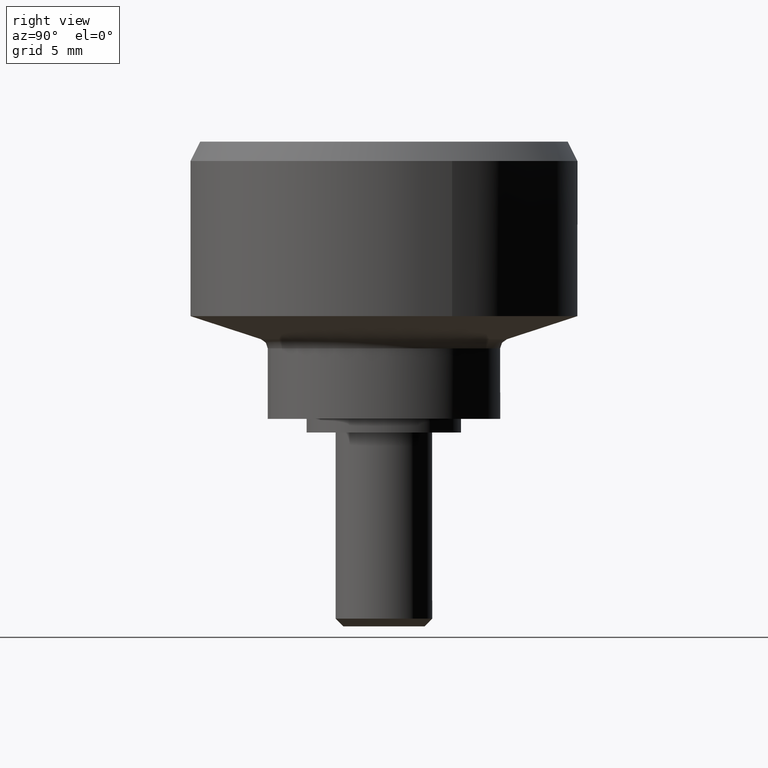
[diagram: clean part render]
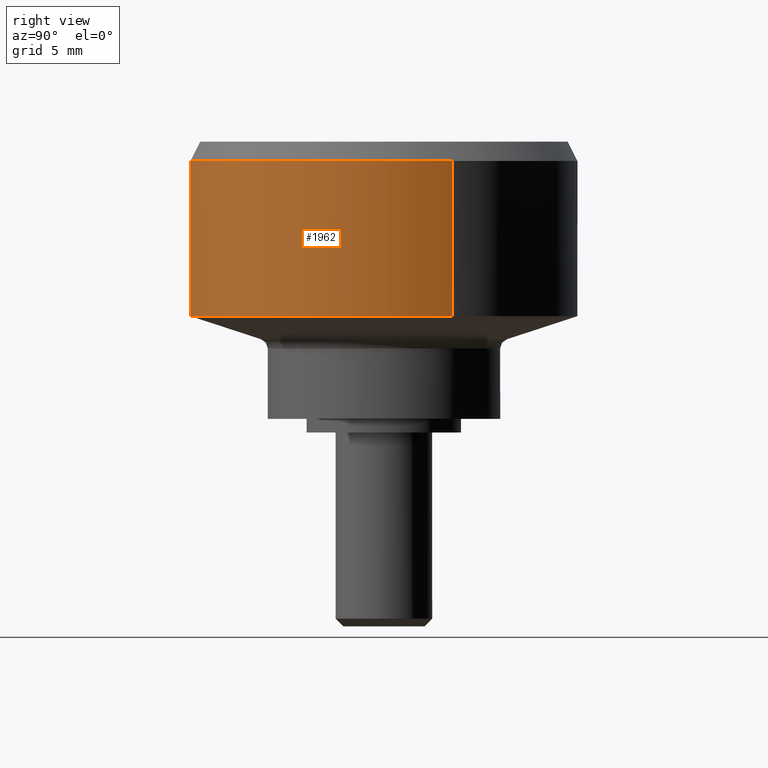
[diagram: same view with one face highlighted and labeled with its STEP entity id]
A machine part, right view. The second image highlights one B-rep face of the part: STEP entity #1962.
In plain terms, the highlighted face is a freeform B-spline surface patch.
Its self-contained STEP definition (entity closure, byte-faithful):
#1759=CARTESIAN_POINT('',(2.503800040552528,-9.681476403780005,6.000000000000323));
#1760=VERTEX_POINT('',#1759);
#1766=CARTESIAN_POINT('',(0.610483566912849,-9.981348096050251,6.0));
#1767=VERTEX_POINT('',#1766);
#1768=CARTESIAN_POINT('',(2.503800040552528,-9.681476403780005,6.000000000000324));
#1769=CARTESIAN_POINT('',(1.571578997512162,-9.922565158017424,6.000000000000001));
#1770=CARTESIAN_POINT('',(0.610483566912849,-9.981348096050251,6.0));
#1778=(BOUNDED_CURVE()B_SPLINE_CURVE(2,(#1768,#1769,#1770),.UNSPECIFIED.,.F.,.U.)B_SPLINE_CURVE_WITH_KNOTS((3,3),(0.707273770289315,0.739332993849996),.UNSPECIFIED.)CURVE()GEOMETRIC_REPRESENTATION_ITEM()RATIONAL_B_SPLINE_CURVE((0.916996154476284,0.941717590524257,0.976072109415231))REPRESENTATION_ITEM(''));
#1779=EDGE_CURVE('',#1760,#1767,#1778,.T.);
#1817=CARTESIAN_POINT('',(9.361436365633708,3.516178205408258,6.0));
#1818=VERTEX_POINT('',#1817);
#1834=CARTESIAN_POINT('',(10.0,0.0,6.0));
#1835=VERTEX_POINT('',#1834);
#1836=CARTESIAN_POINT('',(9.361436365633708,3.516178205408257,5.999999999999999));
#1837=CARTESIAN_POINT('',(10.0,1.816073011839893,6.0));
#1838=CARTESIAN_POINT('',(10.0,0.0,6.0));
#1846=(BOUNDED_CURVE()B_SPLINE_CURVE(2,(#1836,#1837,#1838),.UNSPECIFIED.,.F.,.U.)B_SPLINE_CURVE_WITH_KNOTS((3,3),(0.440284196857223,0.500000000000000),.UNSPECIFIED.)CURVE()GEOMETRIC_REPRESENTATION_ITEM()RATIONAL_B_SPLINE_CURVE((0.893499586402586,0.930038584813926,1.0))REPRESENTATION_ITEM(''));
#1847=EDGE_CURVE('',#1818,#1835,#1846,.T.);
#1849=CARTESIAN_POINT('',(10.0,0.0,6.0));
#1850=CARTESIAN_POINT('',(10.0,-7.742827278405003,6.000000000000001));
#1851=CARTESIAN_POINT('',(2.503800040552529,-9.681476403780005,6.000000000000323));
#1859=(BOUNDED_CURVE()B_SPLINE_CURVE(2,(#1849,#1850,#1851),.UNSPECIFIED.,.F.,.U.)B_SPLINE_CURVE_WITH_KNOTS((3,3),(0.500000000000000,0.707273770289316),.UNSPECIFIED.)CURVE()GEOMETRIC_REPRESENTATION_ITEM()RATIONAL_B_SPLINE_CURVE((1.0,0.757163672977449,0.916996154476285))REPRESENTATION_ITEM(''));
#1860=EDGE_CURVE('',#1835,#1760,#1859,.T.);
#1897=CARTESIAN_POINT('',(9.361435787766570,3.516179743915722,14.200000000000010));
#1898=CARTESIAN_POINT('',(9.889640193651504,2.109894517154083,14.200000000000006));
#1899=CARTESIAN_POINT('',(9.981347984218667,0.610485395348570,14.199999999999999));
#1900=CARTESIAN_POINT('',(10.591833379567237,-9.370862588870097,14.200000000000006));
#1901=CARTESIAN_POINT('',(0.610485395348570,-9.981347984218667,14.199999999999999));
#1902=CARTESIAN_POINT('',(9.361435787766570,3.516179743915722,5.795000000000001));
#1903=CARTESIAN_POINT('',(9.889640193651504,2.109894517154083,5.795000000000000));
#1904=CARTESIAN_POINT('',(9.981347984218667,0.610485395348570,5.795000000000000));
#1905=CARTESIAN_POINT('',(10.591833379567237,-9.370862588870097,5.795000000000000));
#1906=CARTESIAN_POINT('',(0.610485395348570,-9.981347984218667,5.795000000000000));
#1914=(BOUNDED_SURFACE()B_SPLINE_SURFACE(2,1,((#1897,#1902),(#1898,#1903),(#1899,#1904),(#1900,#1905),(#1901,#1906)),.UNSPECIFIED.,.F.,.F.,.U.)B_SPLINE_SURFACE_WITH_KNOTS((3,2,3),(2,2),(0.0,3.313708498984759,19.882250993908560),(0.0,8.405000000000005),.UNSPECIFIED.)GEOMETRIC_REPRESENTATION_ITEM()RATIONAL_B_SPLINE_SURFACE(((0.906274169979695,0.906274169979695),(0.941421356237309,0.941421356237309),(1.0,1.0),(0.707106781186548,0.707106781186548),(1.0,1.0)))REPRESENTATION_ITEM('')SURFACE());
#1915=CARTESIAN_POINT('',(9.361437029675599,3.516176437468118,14.0));
#1916=VERTEX_POINT('',#1915);
#1917=CARTESIAN_POINT('',(10.0,0.0,14.0));
#1918=VERTEX_POINT('',#1917);
#1919=CARTESIAN_POINT('',(9.361437029675599,3.516176437468118,13.999999999999996));
#1920=CARTESIAN_POINT('',(10.000000000000002,1.816072036429388,13.999999999999996));
#1921=CARTESIAN_POINT('',(10.0,0.0,14.0));
#1929=(BOUNDED_CURVE()B_SPLINE_CURVE(2,(#1919,#1920,#1921),.UNSPECIFIED.,.F.,.U.)B_SPLINE_CURVE_WITH_KNOTS((3,3),(0.440284226686614,0.500000000000000),.UNSPECIFIED.)CURVE()GEOMETRIC_REPRESENTATION_ITEM()RATIONAL_B_SPLINE_CURVE((0.893499622906702,0.930038619761232,1.0))REPRESENTATION_ITEM(''));
#1930=EDGE_CURVE('',#1916,#1918,#1929,.T.);
#1931=ORIENTED_EDGE('',*,*,#1930,.T.);
#1932=CARTESIAN_POINT('',(0.610485395348940,-9.981347984218679,13.999999999999870));
#1933=VERTEX_POINT('',#1932);
#1934=CARTESIAN_POINT('',(10.0,0.0,14.0));
#1935=CARTESIAN_POINT('',(9.999999999999998,-9.407060669055548,13.999999999999998));
#1936=CARTESIAN_POINT('',(0.610485395348940,-9.981347984218679,13.999999999999872));
#1944=(BOUNDED_CURVE()B_SPLINE_CURVE(2,(#1934,#1935,#1936),.UNSPECIFIED.,.F.,.U.)B_SPLINE_CURVE_WITH_KNOTS((3,3),(0.500000000000000,0.739332962241943),.UNSPECIFIED.)CURVE()GEOMETRIC_REPRESENTATION_ITEM()RATIONAL_B_SPLINE_CURVE((1.0,0.719603993283196,0.976072041673147))REPRESENTATION_ITEM(''));
#1945=EDGE_CURVE('',#1918,#1933,#1944,.T.);
#1946=ORIENTED_EDGE('',*,*,#1945,.T.);
#1947=CARTESIAN_POINT('',(0.610485395348940,-9.981347984218679,13.999999999999870));
#1948=CARTESIAN_POINT('',(0.610483566912849,-9.981348096050251,6.0));
#1949=QUASI_UNIFORM_CURVE('',1,(#1947,#1948),.UNSPECIFIED.,.F.,.U.);
#1950=EDGE_CURVE('',#1933,#1767,#1949,.T.);
#1951=ORIENTED_EDGE('',*,*,#1950,.T.);
#1952=ORIENTED_EDGE('',*,*,#1779,.F.);
#1953=ORIENTED_EDGE('',*,*,#1860,.F.);
#1954=ORIENTED_EDGE('',*,*,#1847,.F.);
#1955=CARTESIAN_POINT('',(9.361437029675599,3.516176437468118,14.0));
#1956=CARTESIAN_POINT('',(9.361436365633708,3.516178205408258,6.0));
#1957=QUASI_UNIFORM_CURVE('',1,(#1955,#1956),.UNSPECIFIED.,.F.,.U.);
#1958=EDGE_CURVE('',#1916,#1818,#1957,.T.);
#1959=ORIENTED_EDGE('',*,*,#1958,.F.);
#1960=EDGE_LOOP('',(#1931,#1946,#1951,#1952,#1953,#1954,#1959));
#1961=FACE_OUTER_BOUND('',#1960,.T.);
#1962=ADVANCED_FACE('',(#1961),#1914,.T.);